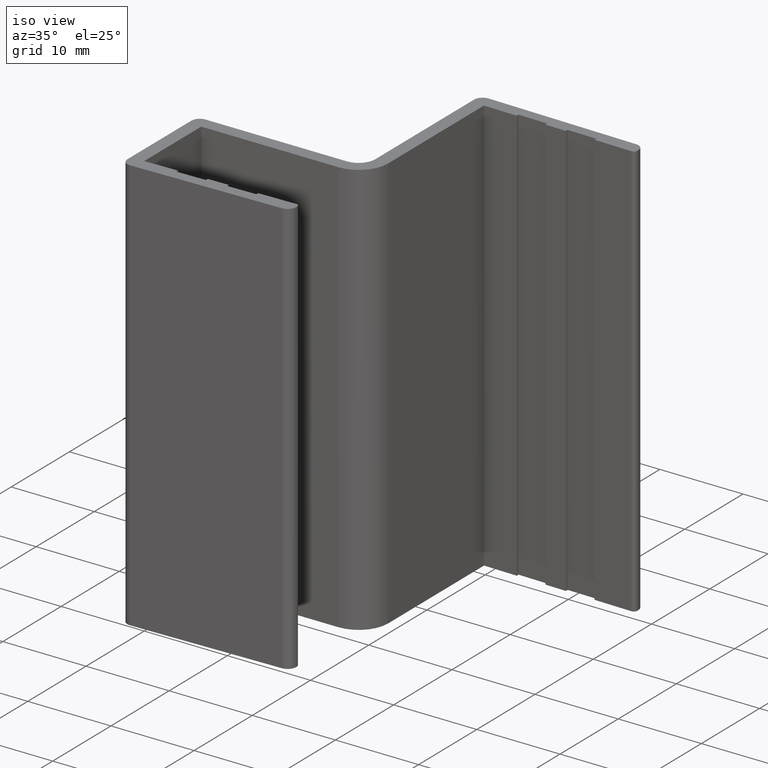
[diagram: clean part render]
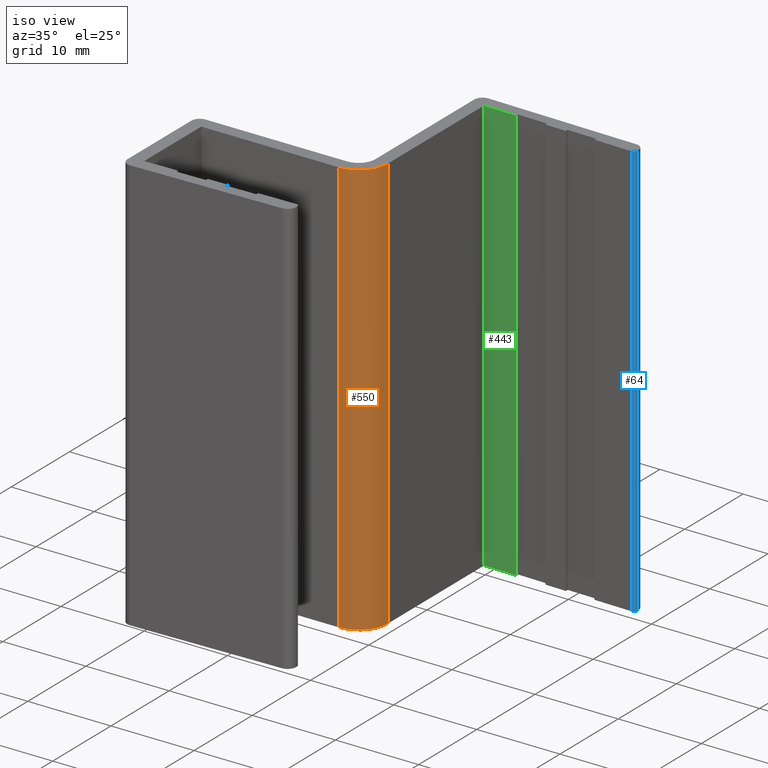
[diagram: same view with three faces highlighted in distinct colors, each labeled with its STEP entity id]
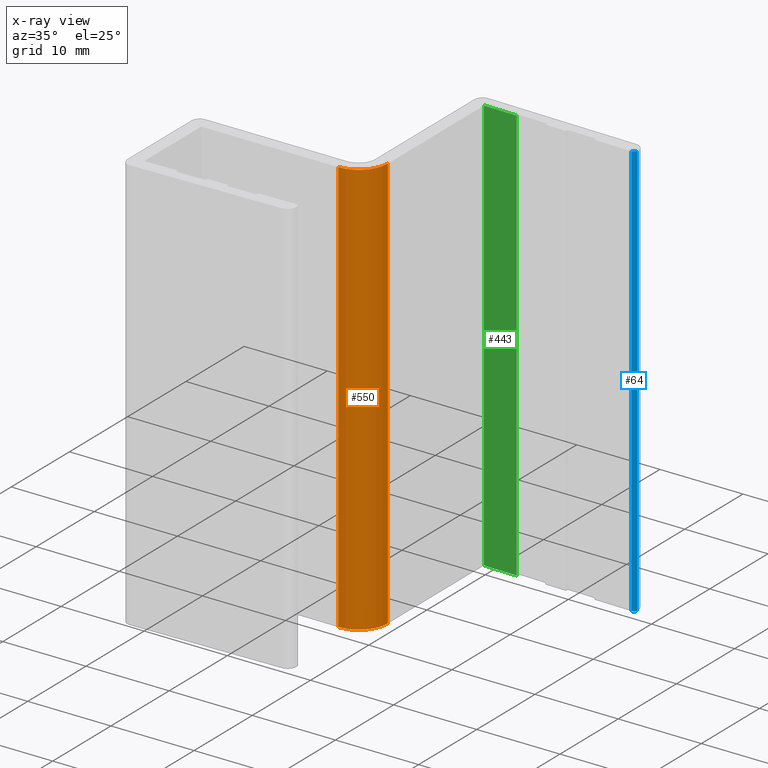
[diagram: x-ray of the same camera — body ghosted, the three highlighted faces saturated]
A machine part, iso view with three faces highlighted in distinct colors.
The next image is the same camera in x-ray (body ghosted, the three faces saturated) — at least one of them is partly hidden behind the body in this view.
Their STEP definitions:

[orange] entity #550 — the highlighted cylindrical surface (edge-blend (fillet) strip) has radius 3.5 mm, axis along (0, 0, -1).
#3 = EDGE_LOOP ( 'NONE', ( #1300, #1222, #701, #560 ) ) ;
#59 = CYLINDRICAL_SURFACE ( 'NONE', #677, 3.499999999999999600 ) ;
#90 = CIRCLE ( 'NONE', #822, 3.499999999999999600 ) ;
#260 = CARTESIAN_POINT ( 'NONE',  ( 20.00000000000000000, 13.30000000000000100, 0.0000000000000000000 ) ) ;
#309 = VECTOR ( 'NONE', #808, 1000.000000000000000 ) ;
#350 = CARTESIAN_POINT ( 'NONE',  ( 16.50000000000000000, 13.30000000000000100, 50.00000000000000000 ) ) ;
#352 = CARTESIAN_POINT ( 'NONE',  ( 16.50000000000000000, 13.30000000000000100, 0.0000000000000000000 ) ) ;
#369 = DIRECTION ( 'NONE',  ( -1.000000000000000000, 0.0000000000000000000, 0.0000000000000000000 ) ) ;
#370 = DIRECTION ( 'NONE',  ( 0.0000000000000000000, 0.0000000000000000000, -1.000000000000000000 ) ) ;
#378 = DIRECTION ( 'NONE',  ( -1.000000000000000000, 0.0000000000000000000, 0.0000000000000000000 ) ) ;
#385 = EDGE_CURVE ( 'NONE', #511, #923, #504, .T. ) ;
#426 = DIRECTION ( 'NONE',  ( 0.0000000000000000000, 0.0000000000000000000, -1.000000000000000000 ) ) ;
#429 = DIRECTION ( 'NONE',  ( -1.000000000000000000, 0.0000000000000000000, 0.0000000000000000000 ) ) ;
#432 = DIRECTION ( 'NONE',  ( -0.0000000000000000000, -0.0000000000000000000, 1.000000000000000000 ) ) ;
#439 = CARTESIAN_POINT ( 'NONE',  ( 16.50000000000000000, 13.30000000000000100, 50.00000000000000000 ) ) ;
#483 = CARTESIAN_POINT ( 'NONE',  ( 16.50000000000000000, 9.800000000000000700, 50.00000000000000000 ) ) ;
#504 = LINE ( 'NONE', #1128, #772 ) ;
#511 = VERTEX_POINT ( 'NONE', #533 ) ;
#533 = CARTESIAN_POINT ( 'NONE',  ( 20.00000000000000000, 13.30000000000000100, 50.00000000000000000 ) ) ;
#537 = EDGE_CURVE ( 'NONE', #668, #511, #649, .T. ) ;
#546 = EDGE_CURVE ( 'NONE', #923, #1245, #90, .T. ) ;
#550 = ADVANCED_FACE ( 'NONE', ( #1173 ), #59, .T. ) ;
#560 = ORIENTED_EDGE ( 'NONE', *, *, #385, .F. ) ;
#649 = CIRCLE ( 'NONE', #672, 3.499999999999999600 ) ;
#668 = VERTEX_POINT ( 'NONE', #845 ) ;
#672 = AXIS2_PLACEMENT_3D ( 'NONE', #439, #432, #429 ) ;
#677 = AXIS2_PLACEMENT_3D ( 'NONE', #350, #426, #378 ) ;
#701 = ORIENTED_EDGE ( 'NONE', *, *, #546, .F. ) ;
#772 = VECTOR ( 'NONE', #1129, 1000.000000000000000 ) ;
#808 = DIRECTION ( 'NONE',  ( -0.0000000000000000000, -0.0000000000000000000, 1.000000000000000000 ) ) ;
#810 = EDGE_CURVE ( 'NONE', #1245, #668, #922, .T. ) ;
#822 = AXIS2_PLACEMENT_3D ( 'NONE', #352, #370, #369 ) ;
#845 = CARTESIAN_POINT ( 'NONE',  ( 16.50000000000000000, 9.800000000000000700, 50.00000000000000000 ) ) ;
#922 = LINE ( 'NONE', #483, #309 ) ;
#923 = VERTEX_POINT ( 'NONE', #260 ) ;
#1128 = CARTESIAN_POINT ( 'NONE',  ( 20.00000000000000000, 13.30000000000000100, 50.00000000000000000 ) ) ;
#1129 = DIRECTION ( 'NONE',  ( 0.0000000000000000000, 0.0000000000000000000, -1.000000000000000000 ) ) ;
#1173 = FACE_OUTER_BOUND ( 'NONE', #3, .T. ) ;
#1222 = ORIENTED_EDGE ( 'NONE', *, *, #810, .F. ) ;
#1245 = VERTEX_POINT ( 'NONE', #1266 ) ;
#1266 = CARTESIAN_POINT ( 'NONE',  ( 16.50000000000000000, 9.800000000000000700, 0.0000000000000000000 ) ) ;
#1300 = ORIENTED_EDGE ( 'NONE', *, *, #537, .F. ) ;

[blue] entity #64 — the highlighted cylindrical surface (edge-blend (fillet) strip) has radius 0.4 mm, axis along (0, 0, -1).
#19 = AXIS2_PLACEMENT_3D ( 'NONE', #535, #582, #564 ) ;
#64 = ADVANCED_FACE ( 'NONE', ( #284 ), #1108, .T. ) ;
#186 = CARTESIAN_POINT ( 'NONE',  ( 38.00878808263412600, 29.80859911369325500, 50.00000000000000000 ) ) ;
#189 = DIRECTION ( 'NONE',  ( -0.0000000000000000000, -0.0000000000000000000, 1.000000000000000000 ) ) ;
#191 = DIRECTION ( 'NONE',  ( -1.000000000000000000, 0.0000000000000000000, 0.0000000000000000000 ) ) ;
#193 = VECTOR ( 'NONE', #746, 1000.000000000000000 ) ;
#200 = ORIENTED_EDGE ( 'NONE', *, *, #908, .F. ) ;
#211 = VECTOR ( 'NONE', #1154, 1000.000000000000000 ) ;
#222 = LINE ( 'NONE', #1226, #193 ) ;
#227 = CARTESIAN_POINT ( 'NONE',  ( 38.40869359816368700, 29.79990551552957000, 0.0000000000000000000 ) ) ;
#284 = FACE_OUTER_BOUND ( 'NONE', #1210, .T. ) ;
#386 = EDGE_CURVE ( 'NONE', #413, #753, #1055, .T. ) ;
#413 = VERTEX_POINT ( 'NONE', #1022 ) ;
#478 = ORIENTED_EDGE ( 'NONE', *, *, #868, .F. ) ;
#505 = VERTEX_POINT ( 'NONE', #605 ) ;
#535 = CARTESIAN_POINT ( 'NONE',  ( 38.00878808263412600, 29.80859911369325500, 0.0000000000000000000 ) ) ;
#564 = DIRECTION ( 'NONE',  ( -1.000000000000000000, 0.0000000000000000000, 0.0000000000000000000 ) ) ;
#577 = CIRCLE ( 'NONE', #695, 0.3999999999999975800 ) ;
#580 = EDGE_CURVE ( 'NONE', #505, #413, #577, .T. ) ;
#582 = DIRECTION ( 'NONE',  ( 0.0000000000000000000, 0.0000000000000000000, -1.000000000000000000 ) ) ;
#592 = CIRCLE ( 'NONE', #19, 0.3999999999999975800 ) ;
#605 = CARTESIAN_POINT ( 'NONE',  ( 38.00009448447043100, 29.40869359816368700, 50.00000000000000000 ) ) ;
#695 = AXIS2_PLACEMENT_3D ( 'NONE', #186, #189, #191 ) ;
#746 = DIRECTION ( 'NONE',  ( -0.0000000000000000000, -0.0000000000000000000, 1.000000000000000000 ) ) ;
#753 = VERTEX_POINT ( 'NONE', #227 ) ;
#798 = DIRECTION ( 'NONE',  ( 0.0000000000000000000, 0.0000000000000000000, -1.000000000000000000 ) ) ;
#833 = DIRECTION ( 'NONE',  ( -1.000000000000000000, 0.0000000000000000000, 0.0000000000000000000 ) ) ;
#844 = AXIS2_PLACEMENT_3D ( 'NONE', #1303, #798, #833 ) ;
#868 = EDGE_CURVE ( 'NONE', #753, #1275, #592, .T. ) ;
#908 = EDGE_CURVE ( 'NONE', #1275, #505, #222, .T. ) ;
#925 = CARTESIAN_POINT ( 'NONE',  ( 38.00009448447043100, 29.40869359816368700, 0.0000000000000000000 ) ) ;
#986 = ORIENTED_EDGE ( 'NONE', *, *, #386, .F. ) ;
#1022 = CARTESIAN_POINT ( 'NONE',  ( 38.40869359816368700, 29.79990551552957000, 50.00000000000000000 ) ) ;
#1055 = LINE ( 'NONE', #1125, #211 ) ;
#1108 = CYLINDRICAL_SURFACE ( 'NONE', #844, 0.3999999999999975800 ) ;
#1125 = CARTESIAN_POINT ( 'NONE',  ( 38.40869359816368700, 29.79990551552957000, 50.00000000000000000 ) ) ;
#1154 = DIRECTION ( 'NONE',  ( 0.0000000000000000000, 0.0000000000000000000, -1.000000000000000000 ) ) ;
#1210 = EDGE_LOOP ( 'NONE', ( #1304, #200, #478, #986 ) ) ;
#1226 = CARTESIAN_POINT ( 'NONE',  ( 38.00009448447043100, 29.40869359816368700, 50.00000000000000000 ) ) ;
#1275 = VERTEX_POINT ( 'NONE', #925 ) ;
#1303 = CARTESIAN_POINT ( 'NONE',  ( 38.00878808263412600, 29.80859911369325500, 50.00000000000000000 ) ) ;
#1304 = ORIENTED_EDGE ( 'NONE', *, *, #580, .F. ) ;

[green] entity #443 — the highlighted planar face has unit normal (0.0217, 0.9998, -0).
#31 = LINE ( 'NONE', #1205, #578 ) ;
#45 = FACE_OUTER_BOUND ( 'NONE', #817, .T. ) ;
#101 = VERTEX_POINT ( 'NONE', #1324 ) ;
#114 = EDGE_CURVE ( 'NONE', #1337, #621, #1330, .T. ) ;
#119 = CARTESIAN_POINT ( 'NONE',  ( 24.00000000000000000, 29.71304347826087200, 50.00000000000000000 ) ) ;
#127 = VECTOR ( 'NONE', #534, 1000.000000000000000 ) ;
#128 = EDGE_CURVE ( 'NONE', #1337, #101, #225, .T. ) ;
#192 = CARTESIAN_POINT ( 'NONE',  ( 20.00000000000000000, 29.80000000000000100, 50.00000000000000000 ) ) ;
#198 = EDGE_CURVE ( 'NONE', #944, #621, #688, .T. ) ;
#225 = LINE ( 'NONE', #250, #1044 ) ;
#237 = ORIENTED_EDGE ( 'NONE', *, *, #364, .T. ) ;
#250 = CARTESIAN_POINT ( 'NONE',  ( 20.00000000000000000, 29.80000000000000100, 50.00000000000000000 ) ) ;
#274 = CARTESIAN_POINT ( 'NONE',  ( 24.00000000000000000, 29.71304347826087200, 0.0000000000000000000 ) ) ;
#292 = CARTESIAN_POINT ( 'NONE',  ( 24.00000000000000000, 29.71304347826087200, 0.0000000000000000000 ) ) ;
#330 = DIRECTION ( 'NONE',  ( 0.9997637888239162600, -0.02173399540921543500, 0.0000000000000000000 ) ) ;
#364 = EDGE_CURVE ( 'NONE', #101, #944, #31, .T. ) ;
#394 = ORIENTED_EDGE ( 'NONE', *, *, #198, .T. ) ;
#419 = DIRECTION ( 'NONE',  ( -0.0000000000000000000, -0.0000000000000000000, -1.000000000000000000 ) ) ;
#443 = ADVANCED_FACE ( 'NONE', ( #45 ), #820, .F. ) ;
#534 = DIRECTION ( 'NONE',  ( -0.0000000000000000000, -0.0000000000000000000, 1.000000000000000000 ) ) ;
#568 = AXIS2_PLACEMENT_3D ( 'NONE', #884, #836, #863 ) ;
#578 = VECTOR ( 'NONE', #1327, 1000.000000000000000 ) ;
#621 = VERTEX_POINT ( 'NONE', #119 ) ;
#688 = LINE ( 'NONE', #292, #127 ) ;
#817 = EDGE_LOOP ( 'NONE', ( #237, #394, #1155, #1213 ) ) ;
#820 = PLANE ( 'NONE',  #568 ) ;
#836 = DIRECTION ( 'NONE',  ( 0.02173399540921543100, 0.9997637888239162600, -0.0000000000000000000 ) ) ;
#863 = DIRECTION ( 'NONE',  ( -0.9997637888239162600, 0.02173399540921543100, 0.0000000000000000000 ) ) ;
#884 = CARTESIAN_POINT ( 'NONE',  ( 20.00000000000000000, 29.80000000000000100, 50.00000000000000000 ) ) ;
#944 = VERTEX_POINT ( 'NONE', #274 ) ;
#1026 = CARTESIAN_POINT ( 'NONE',  ( 20.00000000000000000, 29.80000000000000100, 50.00000000000000000 ) ) ;
#1044 = VECTOR ( 'NONE', #419, 1000.000000000000000 ) ;
#1074 = VECTOR ( 'NONE', #330, 1000.000000000000000 ) ;
#1155 = ORIENTED_EDGE ( 'NONE', *, *, #114, .F. ) ;
#1205 = CARTESIAN_POINT ( 'NONE',  ( 20.00000000000000000, 29.80000000000000100, 0.0000000000000000000 ) ) ;
#1213 = ORIENTED_EDGE ( 'NONE', *, *, #128, .T. ) ;
#1324 = CARTESIAN_POINT ( 'NONE',  ( 20.00000000000000000, 29.80000000000000100, 0.0000000000000000000 ) ) ;
#1327 = DIRECTION ( 'NONE',  ( 0.9997637888239162600, -0.02173399540921543500, 0.0000000000000000000 ) ) ;
#1330 = LINE ( 'NONE', #1026, #1074 ) ;
#1337 = VERTEX_POINT ( 'NONE', #192 ) ;